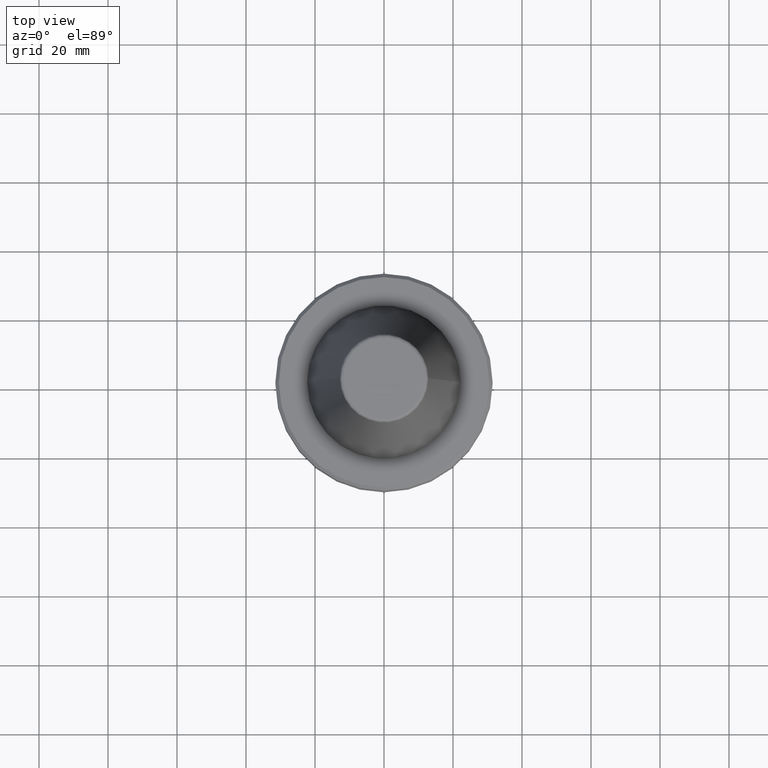
[diagram: clean part render]
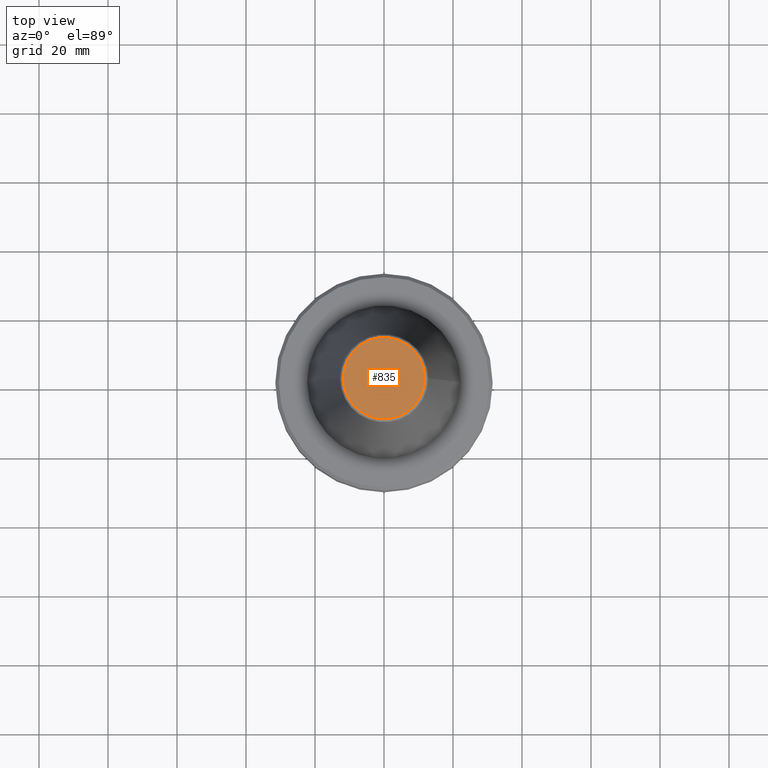
[diagram: same view with one face highlighted and labeled with its STEP entity id]
A machine part, top view. The second image highlights one B-rep face of the part: STEP entity #835.
In plain terms, the highlighted planar face has unit normal (0, 0, -1).
Its self-contained STEP definition (entity closure, byte-faithful):
#8 = CIRCLE ( 'NONE', #590, 11.82266927716813000 ) ;
#31 = VERTEX_POINT ( 'NONE', #586 ) ;
#45 = CIRCLE ( 'NONE', #298, 11.82266927716813000 ) ;
#76 = EDGE_LOOP ( 'NONE', ( #150, #265 ) ) ;
#110 = EDGE_CURVE ( 'NONE', #31, #972, #8, .T. ) ;
#150 = ORIENTED_EDGE ( 'NONE', *, *, #110, .T. ) ;
#265 = ORIENTED_EDGE ( 'NONE', *, *, #315, .T. ) ;
#298 = AXIS2_PLACEMENT_3D ( 'NONE', #956, #978, #1012 ) ;
#315 = EDGE_CURVE ( 'NONE', #972, #31, #45, .T. ) ;
#351 = CARTESIAN_POINT ( 'NONE',  ( 0.0000000000000000000, 0.0000000000000000000, -4.440892098500626200E-013 ) ) ;
#468 = AXIS2_PLACEMENT_3D ( 'NONE', #351, #989, #711 ) ;
#561 = DIRECTION ( 'NONE',  ( 1.000000000000000000, 0.0000000000000000000, 0.0000000000000000000 ) ) ;
#586 = CARTESIAN_POINT ( 'NONE',  ( 11.82266927716813000, 0.0000000000000000000, -4.440892098500626200E-013 ) ) ;
#590 = AXIS2_PLACEMENT_3D ( 'NONE', #999, #965, #561 ) ;
#711 = DIRECTION ( 'NONE',  ( -1.000000000000000000, 0.0000000000000000000, -0.0000000000000000000 ) ) ;
#738 = FACE_OUTER_BOUND ( 'NONE', #76, .T. ) ;
#770 = PLANE ( 'NONE',  #468 ) ;
#830 = CARTESIAN_POINT ( 'NONE',  ( -11.82266927716813000, 1.508450817090336800E-015, -4.440892098500626200E-013 ) ) ;
#835 = ADVANCED_FACE ( 'NONE', ( #738 ), #770, .F. ) ;
#956 = CARTESIAN_POINT ( 'NONE',  ( 0.0000000000000000000, 0.0000000000000000000, -4.440892098500626200E-013 ) ) ;
#965 = DIRECTION ( 'NONE',  ( -0.0000000000000000000, -0.0000000000000000000, 1.000000000000000000 ) ) ;
#972 = VERTEX_POINT ( 'NONE', #830 ) ;
#978 = DIRECTION ( 'NONE',  ( -0.0000000000000000000, -0.0000000000000000000, 1.000000000000000000 ) ) ;
#989 = DIRECTION ( 'NONE',  ( 0.0000000000000000000, 0.0000000000000000000, -1.000000000000000000 ) ) ;
#999 = CARTESIAN_POINT ( 'NONE',  ( 0.0000000000000000000, 0.0000000000000000000, -4.440892098500626200E-013 ) ) ;
#1012 = DIRECTION ( 'NONE',  ( 1.000000000000000000, 0.0000000000000000000, 0.0000000000000000000 ) ) ;